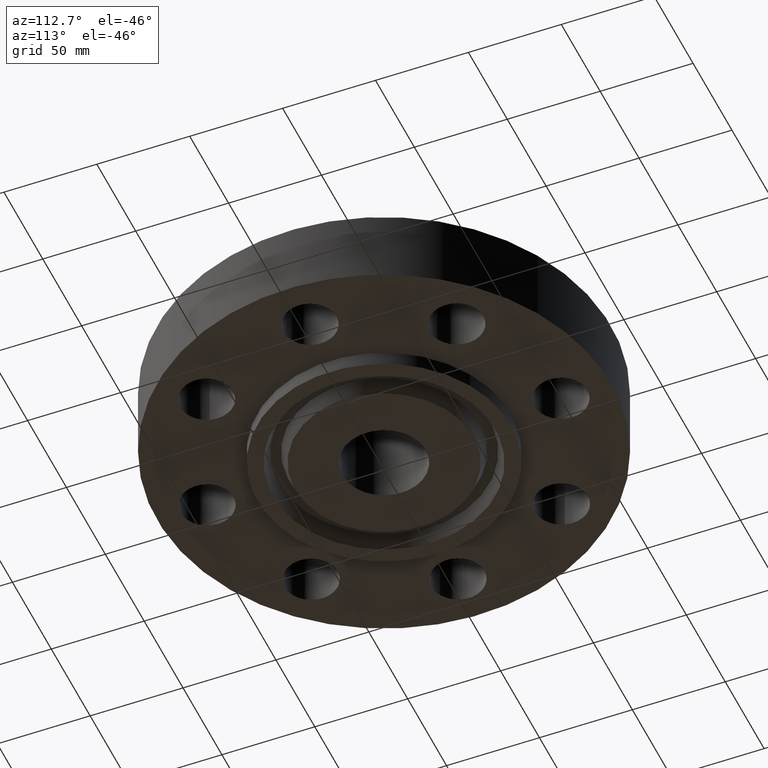
[diagram: clean part render]
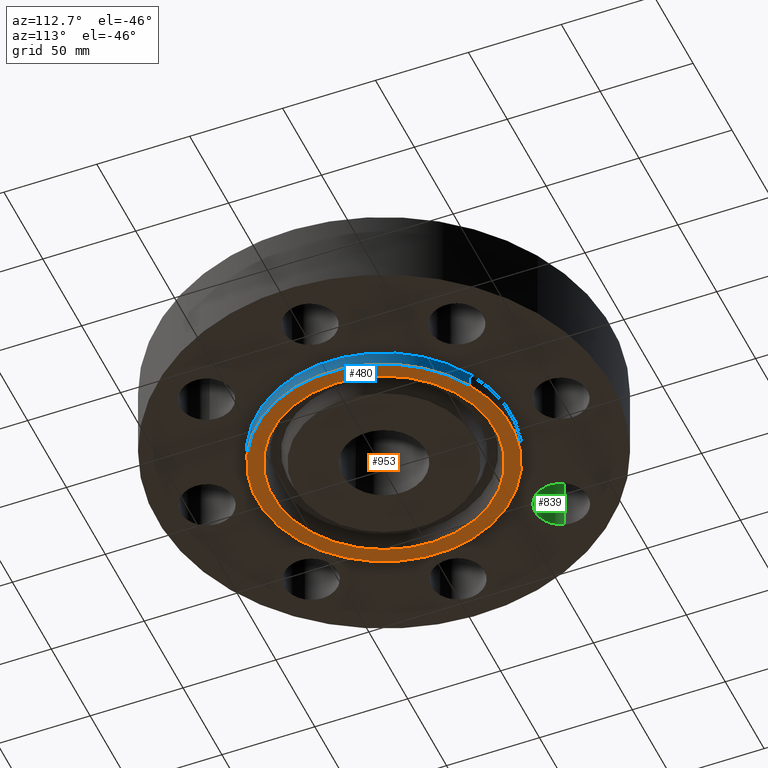
[diagram: same view with three faces highlighted in distinct colors, each labeled with its STEP entity id]
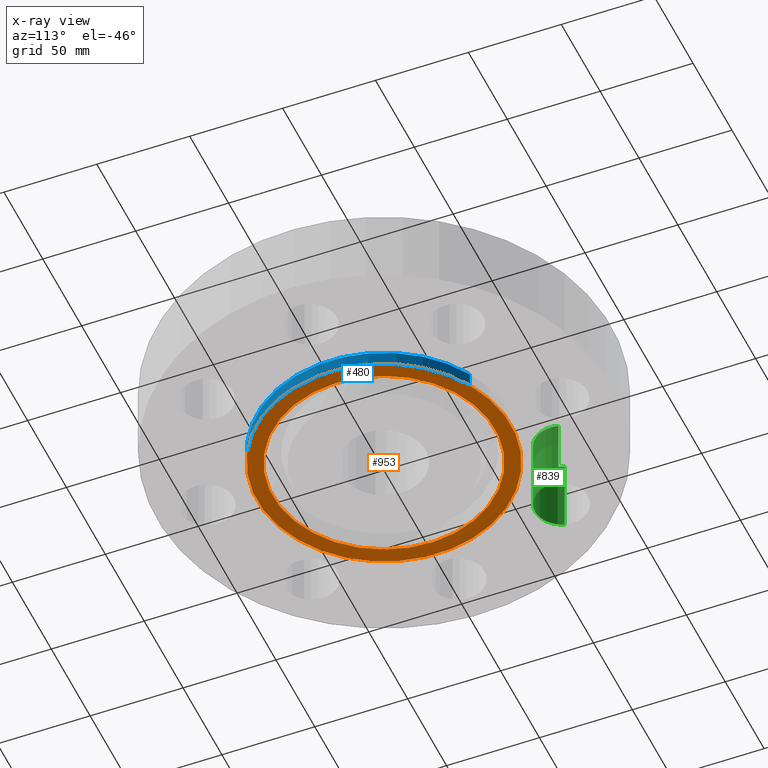
[diagram: x-ray of the same camera — body ghosted, the three highlighted faces saturated]
A machine part, auxiliary view with three faces highlighted in distinct colors.
The next image is the same camera in x-ray (body ghosted, the three faces saturated) — at least one of them is partly hidden behind the body in this view.
Their STEP definitions:

[orange] entity #953 — the highlighted planar face has unit normal (0, 0, -1).
#431=AXIS2_PLACEMENT_3D('Circle Axis2P3D',#429,#430,$) ;
#466=AXIS2_PLACEMENT_3D('Circle Axis2P3D',#464,#465,$) ;
#929=AXIS2_PLACEMENT_3D('Plane Axis2P3D',#926,#927,#928) ;
#937=AXIS2_PLACEMENT_3D('Circle Axis2P3D',#935,#936,$) ;
#946=AXIS2_PLACEMENT_3D('Circle Axis2P3D',#944,#945,$) ;
#429=CARTESIAN_POINT('Axis2P3D Location',(0.,0.,-0.313000000001)) ;
#433=CARTESIAN_POINT('Vertex',(-1.288456135,-2.35850313509,-0.313000000001)) ;
#435=CARTESIAN_POINT('Vertex',(1.288456135,2.35850313509,-0.313000000001)) ;
#464=CARTESIAN_POINT('Axis2P3D Location',(0.,0.,-0.313000000001)) ;
#926=CARTESIAN_POINT('Axis2P3D Location',(0.,0.885500000004,-0.313000000001)) ;
#935=CARTESIAN_POINT('Axis2P3D Location',(-2.79741234551E-016,-4.19611851827E-016,-0.313000000001)) ;
#939=CARTESIAN_POINT('Vertex',(1.13120455834,-2.07065605479,-0.313000000001)) ;
#941=CARTESIAN_POINT('Vertex',(-1.13120455834,2.07065605479,-0.313000000001)) ;
#944=CARTESIAN_POINT('Axis2P3D Location',(6.99353086378E-017,4.19611851827E-016,-0.313000000001)) ;
#430=DIRECTION('Axis2P3D Direction',(0.,0.,-0.0393700787402)) ;
#465=DIRECTION('Axis2P3D Direction',(0.,0.,-0.0393700787402)) ;
#927=DIRECTION('Axis2P3D Direction',(0.,0.,-0.0393700787402)) ;
#928=DIRECTION('Axis2P3D XDirection',(0.0393700787402,0.,0.)) ;
#936=DIRECTION('Axis2P3D Direction',(0.,0.,-0.0393700787402)) ;
#945=DIRECTION('Axis2P3D Direction',(0.,0.,-0.0393700787402)) ;
#932=ORIENTED_EDGE('',*,*,#437,.T.) ;
#933=ORIENTED_EDGE('',*,*,#468,.T.) ;
#950=ORIENTED_EDGE('',*,*,#943,.F.) ;
#951=ORIENTED_EDGE('',*,*,#948,.F.) ;
#952=FACE_BOUND('',#949,.T.) ;
#953=ADVANCED_FACE('PartBody',(#934,#952),#930,.T.) ;
#432=CIRCLE('generated circle',#431,2.68750000001) ;
#467=CIRCLE('generated circle',#466,2.68750000001) ;
#938=CIRCLE('generated circle',#937,2.35950000001) ;
#947=CIRCLE('generated circle',#946,2.35950000001) ;
#437=EDGE_CURVE('',#434,#436,#432,.T.) ;
#468=EDGE_CURVE('',#436,#434,#467,.T.) ;
#943=EDGE_CURVE('',#940,#942,#938,.T.) ;
#948=EDGE_CURVE('',#942,#940,#947,.T.) ;
#931=EDGE_LOOP('',(#932,#933)) ;
#949=EDGE_LOOP('',(#950,#951)) ;
#934=FACE_OUTER_BOUND('',#931,.T.) ;
#930=PLANE('',#929) ;
#434=VERTEX_POINT('',#433) ;
#436=VERTEX_POINT('',#435) ;
#940=VERTEX_POINT('',#939) ;
#942=VERTEX_POINT('',#941) ;

[blue] entity #480 — the highlighted cylindrical surface (partial cylindrical patch) has radius 68.2625 mm, axis along (0, 0, -1).
#427=AXIS2_PLACEMENT_3D('Cylinder Axis2P3D',#424,#425,#426) ;
#466=AXIS2_PLACEMENT_3D('Circle Axis2P3D',#464,#465,$) ;
#471=AXIS2_PLACEMENT_3D('Circle Axis2P3D',#469,#470,$) ;
#424=CARTESIAN_POINT('Axis2P3D Location',(0.,0.,1.90350000001)) ;
#433=CARTESIAN_POINT('Vertex',(-1.288456135,-2.35850313509,-0.313000000001)) ;
#435=CARTESIAN_POINT('Vertex',(1.288456135,2.35850313509,-0.313000000001)) ;
#438=CARTESIAN_POINT('Line Origine',(-1.288456135,-2.35850313509,-0.156500000001)) ;
#442=CARTESIAN_POINT('Vertex',(-1.288456135,-2.35850313509,2.79741234551E-016)) ;
#449=CARTESIAN_POINT('Vertex',(1.288456135,2.35850313509,2.79741234551E-016)) ;
#452=CARTESIAN_POINT('Line Origine',(1.288456135,2.35850313509,-0.156500000001)) ;
#464=CARTESIAN_POINT('Axis2P3D Location',(0.,0.,-0.313000000001)) ;
#469=CARTESIAN_POINT('Axis2P3D Location',(0.,0.,2.79741234551E-016)) ;
#425=DIRECTION('Axis2P3D Direction',(0.,0.,-0.0393700787402)) ;
#426=DIRECTION('Axis2P3D XDirection',(0.0188750212049,0.0345504945626,0.)) ;
#439=DIRECTION('Vector Direction',(0.,0.,-0.0393700787402)) ;
#453=DIRECTION('Vector Direction',(0.,0.,-0.0393700787402)) ;
#465=DIRECTION('Axis2P3D Direction',(0.,0.,-0.0393700787402)) ;
#470=DIRECTION('Axis2P3D Direction',(0.,0.,-0.0393700787402)) ;
#440=VECTOR('Line Direction',#439,0.0393700787402) ;
#454=VECTOR('Line Direction',#453,0.0393700787402) ;
#475=ORIENTED_EDGE('',*,*,#468,.F.) ;
#476=ORIENTED_EDGE('',*,*,#456,.T.) ;
#477=ORIENTED_EDGE('',*,*,#473,.T.) ;
#478=ORIENTED_EDGE('',*,*,#444,.F.) ;
#480=ADVANCED_FACE('PartBody',(#479),#428,.T.) ;
#467=CIRCLE('generated circle',#466,2.68750000001) ;
#472=CIRCLE('generated circle',#471,2.68750000001) ;
#428=CYLINDRICAL_SURFACE('generated cylinder',#427,2.68750000001) ;
#444=EDGE_CURVE('',#434,#443,#441,.F.) ;
#456=EDGE_CURVE('',#436,#450,#455,.F.) ;
#468=EDGE_CURVE('',#436,#434,#467,.T.) ;
#473=EDGE_CURVE('',#450,#443,#472,.T.) ;
#474=EDGE_LOOP('',(#475,#476,#477,#478)) ;
#479=FACE_OUTER_BOUND('',#474,.T.) ;
#441=LINE('Line',#438,#440) ;
#455=LINE('Line',#452,#454) ;
#434=VERTEX_POINT('',#433) ;
#436=VERTEX_POINT('',#435) ;
#443=VERTEX_POINT('',#442) ;
#450=VERTEX_POINT('',#449) ;

[green] entity #839 — the highlighted cylindrical surface (edge-blend (fillet) strip) has radius 14.224 mm, axis along (0, 0, -1).
#617=AXIS2_PLACEMENT_3D('Circle Axis2P3D',#615,#616,$) ;
#800=AXIS2_PLACEMENT_3D('Cylinder Axis2P3D',#797,#798,#799) ;
#830=AXIS2_PLACEMENT_3D('Circle Axis2P3D',#828,#829,$) ;
#610=CARTESIAN_POINT('Vertex',(-3.18899822225,2.49398829202,0.)) ;
#612=CARTESIAN_POINT('Vertex',(-2.11430263667,2.8093125669,0.)) ;
#615=CARTESIAN_POINT('Axis2P3D Location',(-2.65165042946,2.65165042946,0.)) ;
#797=CARTESIAN_POINT('Axis2P3D Location',(-2.65165042946,2.65165042946,1.61606299213)) ;
#802=CARTESIAN_POINT('Line Origine',(-3.18899822225,2.49398829202,0.810000000003)) ;
#806=CARTESIAN_POINT('Vertex',(-3.18899822225,2.49398829202,1.62000000001)) ;
#809=CARTESIAN_POINT('Line Origine',(-2.11430263667,2.8093125669,0.810000000003)) ;
#813=CARTESIAN_POINT('Vertex',(-2.11430263667,2.8093125669,1.62000000001)) ;
#828=CARTESIAN_POINT('Axis2P3D Location',(-2.65165042946,2.65165042946,1.62000000001)) ;
#616=DIRECTION('Axis2P3D Direction',(0.,0.,-0.0393700787402)) ;
#798=DIRECTION('Axis2P3D Direction',(0.,0.,-0.0393700787402)) ;
#799=DIRECTION('Axis2P3D XDirection',(0.0377775444876,0.0110842335096,0.)) ;
#803=DIRECTION('Vector Direction',(0.,0.,-0.0393700787402)) ;
#810=DIRECTION('Vector Direction',(0.,0.,-0.0393700787402)) ;
#829=DIRECTION('Axis2P3D Direction',(0.,0.,-0.0393700787402)) ;
#804=VECTOR('Line Direction',#803,0.0393700787402) ;
#811=VECTOR('Line Direction',#810,0.0393700787402) ;
#834=ORIENTED_EDGE('',*,*,#815,.F.) ;
#835=ORIENTED_EDGE('',*,*,#619,.T.) ;
#836=ORIENTED_EDGE('',*,*,#808,.T.) ;
#837=ORIENTED_EDGE('',*,*,#832,.F.) ;
#839=ADVANCED_FACE('PartBody',(#838),#801,.F.) ;
#618=CIRCLE('generated circle',#617,0.560000000002) ;
#831=CIRCLE('generated circle',#830,0.560000000002) ;
#801=CYLINDRICAL_SURFACE('generated cylinder',#800,0.560000000002) ;
#619=EDGE_CURVE('',#613,#611,#618,.T.) ;
#808=EDGE_CURVE('',#611,#807,#805,.F.) ;
#815=EDGE_CURVE('',#613,#814,#812,.F.) ;
#832=EDGE_CURVE('',#814,#807,#831,.T.) ;
#833=EDGE_LOOP('',(#834,#835,#836,#837)) ;
#838=FACE_OUTER_BOUND('',#833,.T.) ;
#805=LINE('Line',#802,#804) ;
#812=LINE('Line',#809,#811) ;
#611=VERTEX_POINT('',#610) ;
#613=VERTEX_POINT('',#612) ;
#807=VERTEX_POINT('',#806) ;
#814=VERTEX_POINT('',#813) ;